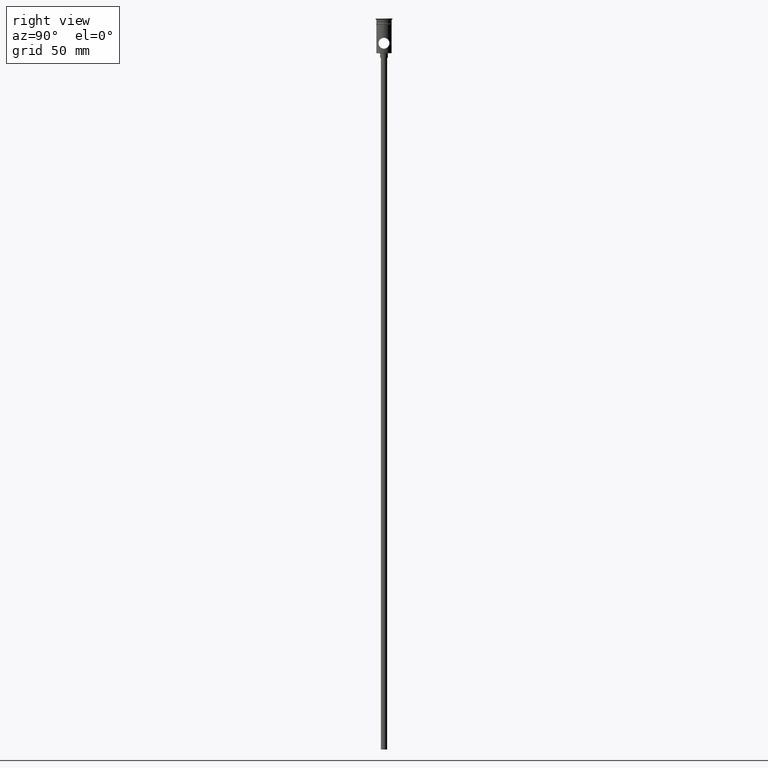
[diagram: clean part render]
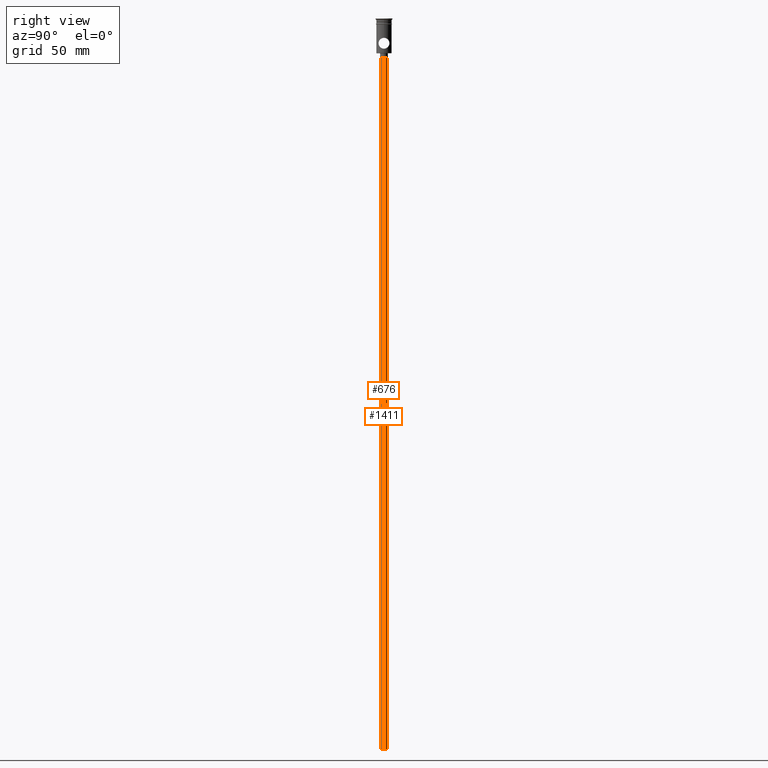
[diagram: same view with one multi-face feature highlighted, each face labeled with its STEP entity id]
A machine part, right view. The highlighted faces form ONE feature: a constant-radius fillet chain: 2 tangent blend faces with common blend radius 2 mm. The faces share edges in the B-rep.
Their STEP definitions:
[1] entity #676 (Cylinder):
#27 = CARTESIAN_POINT ( 'NONE',  ( 0.000000000000000000, 0.000000000000000000, -472.5000000000000568 ) ) ;
#127 = DIRECTION ( 'NONE',  ( -1.000000000000000000, 0.000000000000000000, 0.000000000000000000 ) ) ;
#156 = CARTESIAN_POINT ( 'NONE',  ( -2.000000000000000000, 2.449293598294706414E-16, -472.5000000000000568 ) ) ;
#206 = VERTEX_POINT ( 'NONE', #834 ) ;
#232 = CARTESIAN_POINT ( 'NONE',  ( 2.000000000000000000, 0.000000000000000000, -472.5000000000000568 ) ) ;
#262 = VECTOR ( 'NONE', #1166, 1000.000000000000000 ) ;
#315 = AXIS2_PLACEMENT_3D ( 'NONE', #27, #703, #933 ) ;
#318 = CIRCLE ( 'NONE', #332, 2.000000000000000000 ) ;
#332 = AXIS2_PLACEMENT_3D ( 'NONE', #370, #844, #1251 ) ;
#340 = FACE_OUTER_BOUND ( 'NONE', #482, .T. ) ;
#341 = CARTESIAN_POINT ( 'NONE',  ( 2.000000000000000000, 0.000000000000000000, -472.5000000000000568 ) ) ;
#370 = CARTESIAN_POINT ( 'NONE',  ( 0.000000000000000000, 0.000000000000000000, -472.5000000000000568 ) ) ;
#376 = VECTOR ( 'NONE', #587, 1000.000000000000000 ) ;
#379 = ORIENTED_EDGE ( 'NONE', *, *, #864, .T. ) ;
#482 = EDGE_LOOP ( 'NONE', ( #1121, #1378, #379, #743 ) ) ;
#526 = VERTEX_POINT ( 'NONE', #341 ) ;
#583 = LINE ( 'NONE', #232, #376 ) ;
#587 = DIRECTION ( 'NONE',  ( -0.000000000000000000, -0.000000000000000000, 1.000000000000000000 ) ) ;
#676 = ADVANCED_FACE ( 'NONE', ( #340 ), #1366, .T. ) ;
#684 = CARTESIAN_POINT ( 'NONE',  ( -2.000000000000000000, 2.449293598294706414E-16, -25.50000000000000000 ) ) ;
#692 = DIRECTION ( 'NONE',  ( 0.000000000000000000, 0.000000000000000000, -1.000000000000000000 ) ) ;
#703 = DIRECTION ( 'NONE',  ( -0.000000000000000000, -0.000000000000000000, 1.000000000000000000 ) ) ;
#743 = ORIENTED_EDGE ( 'NONE', *, *, #1042, .T. ) ;
#830 = LINE ( 'NONE', #156, #262 ) ;
#834 = CARTESIAN_POINT ( 'NONE',  ( -2.000000000000000000, 2.449293598294706414E-16, -472.5000000000000568 ) ) ;
#844 = DIRECTION ( 'NONE',  ( 0.000000000000000000, 0.000000000000000000, -1.000000000000000000 ) ) ;
#864 = EDGE_CURVE ( 'NONE', #526, #1038, #583, .T. ) ;
#933 = DIRECTION ( 'NONE',  ( 1.000000000000000000, 0.000000000000000000, 0.000000000000000000 ) ) ;
#949 = AXIS2_PLACEMENT_3D ( 'NONE', #1280, #692, #127 ) ;
#955 = VERTEX_POINT ( 'NONE', #684 ) ;
#1038 = VERTEX_POINT ( 'NONE', #1455 ) ;
#1042 = EDGE_CURVE ( 'NONE', #1038, #955, #1226, .T. ) ;
#1121 = ORIENTED_EDGE ( 'NONE', *, *, #1254, .F. ) ;
#1166 = DIRECTION ( 'NONE',  ( -0.000000000000000000, -0.000000000000000000, 1.000000000000000000 ) ) ;
#1226 = CIRCLE ( 'NONE', #949, 2.000000000000000000 ) ;
#1251 = DIRECTION ( 'NONE',  ( -1.000000000000000000, 0.000000000000000000, 0.000000000000000000 ) ) ;
#1254 = EDGE_CURVE ( 'NONE', #206, #955, #830, .T. ) ;
#1280 = CARTESIAN_POINT ( 'NONE',  ( 0.000000000000000000, 0.000000000000000000, -25.50000000000000000 ) ) ;
#1365 = EDGE_CURVE ( 'NONE', #526, #206, #318, .T. ) ;
#1366 = CYLINDRICAL_SURFACE ( 'NONE', #315, 2.000000000000000000 ) ;
#1378 = ORIENTED_EDGE ( 'NONE', *, *, #1365, .F. ) ;
#1455 = CARTESIAN_POINT ( 'NONE',  ( 2.000000000000000000, 0.000000000000000000, -25.50000000000000000 ) ) ;
[2] entity #1411 (Cylinder):
#26 = AXIS2_PLACEMENT_3D ( 'NONE', #416, #873, #192 ) ;
#112 = CARTESIAN_POINT ( 'NONE',  ( 0.000000000000000000, 0.000000000000000000, -472.5000000000000568 ) ) ;
#156 = CARTESIAN_POINT ( 'NONE',  ( -2.000000000000000000, 2.449293598294706414E-16, -472.5000000000000568 ) ) ;
#192 = DIRECTION ( 'NONE',  ( 1.000000000000000000, 0.000000000000000000, 0.000000000000000000 ) ) ;
#206 = VERTEX_POINT ( 'NONE', #834 ) ;
#227 = DIRECTION ( 'NONE',  ( -1.000000000000000000, 0.000000000000000000, 0.000000000000000000 ) ) ;
#232 = CARTESIAN_POINT ( 'NONE',  ( 2.000000000000000000, 0.000000000000000000, -472.5000000000000568 ) ) ;
#262 = VECTOR ( 'NONE', #1166, 1000.000000000000000 ) ;
#341 = CARTESIAN_POINT ( 'NONE',  ( 2.000000000000000000, 0.000000000000000000, -472.5000000000000568 ) ) ;
#354 = DIRECTION ( 'NONE',  ( -1.000000000000000000, 0.000000000000000000, 0.000000000000000000 ) ) ;
#372 = CARTESIAN_POINT ( 'NONE',  ( 0.000000000000000000, 0.000000000000000000, -25.50000000000000000 ) ) ;
#376 = VECTOR ( 'NONE', #587, 1000.000000000000000 ) ;
#394 = CYLINDRICAL_SURFACE ( 'NONE', #26, 2.000000000000000000 ) ;
#416 = CARTESIAN_POINT ( 'NONE',  ( 0.000000000000000000, 0.000000000000000000, -472.5000000000000568 ) ) ;
#459 = CIRCLE ( 'NONE', #1083, 2.000000000000000000 ) ;
#526 = VERTEX_POINT ( 'NONE', #341 ) ;
#583 = LINE ( 'NONE', #232, #376 ) ;
#587 = DIRECTION ( 'NONE',  ( -0.000000000000000000, -0.000000000000000000, 1.000000000000000000 ) ) ;
#631 = ORIENTED_EDGE ( 'NONE', *, *, #1355, .F. ) ;
#634 = EDGE_LOOP ( 'NONE', ( #631, #1199, #954, #679 ) ) ;
#679 = ORIENTED_EDGE ( 'NONE', *, *, #864, .F. ) ;
#684 = CARTESIAN_POINT ( 'NONE',  ( -2.000000000000000000, 2.449293598294706414E-16, -25.50000000000000000 ) ) ;
#711 = EDGE_CURVE ( 'NONE', #955, #1038, #1044, .T. ) ;
#712 = DIRECTION ( 'NONE',  ( 0.000000000000000000, 0.000000000000000000, -1.000000000000000000 ) ) ;
#722 = AXIS2_PLACEMENT_3D ( 'NONE', #372, #712, #354 ) ;
#830 = LINE ( 'NONE', #156, #262 ) ;
#834 = CARTESIAN_POINT ( 'NONE',  ( -2.000000000000000000, 2.449293598294706414E-16, -472.5000000000000568 ) ) ;
#864 = EDGE_CURVE ( 'NONE', #526, #1038, #583, .T. ) ;
#873 = DIRECTION ( 'NONE',  ( -0.000000000000000000, -0.000000000000000000, 1.000000000000000000 ) ) ;
#937 = DIRECTION ( 'NONE',  ( 0.000000000000000000, 0.000000000000000000, -1.000000000000000000 ) ) ;
#954 = ORIENTED_EDGE ( 'NONE', *, *, #711, .T. ) ;
#955 = VERTEX_POINT ( 'NONE', #684 ) ;
#983 = FACE_OUTER_BOUND ( 'NONE', #634, .T. ) ;
#1038 = VERTEX_POINT ( 'NONE', #1455 ) ;
#1044 = CIRCLE ( 'NONE', #722, 2.000000000000000000 ) ;
#1083 = AXIS2_PLACEMENT_3D ( 'NONE', #112, #937, #227 ) ;
#1166 = DIRECTION ( 'NONE',  ( -0.000000000000000000, -0.000000000000000000, 1.000000000000000000 ) ) ;
#1199 = ORIENTED_EDGE ( 'NONE', *, *, #1254, .T. ) ;
#1254 = EDGE_CURVE ( 'NONE', #206, #955, #830, .T. ) ;
#1355 = EDGE_CURVE ( 'NONE', #206, #526, #459, .T. ) ;
#1411 = ADVANCED_FACE ( 'NONE', ( #983 ), #394, .T. ) ;
#1455 = CARTESIAN_POINT ( 'NONE',  ( 2.000000000000000000, 0.000000000000000000, -25.50000000000000000 ) ) ;